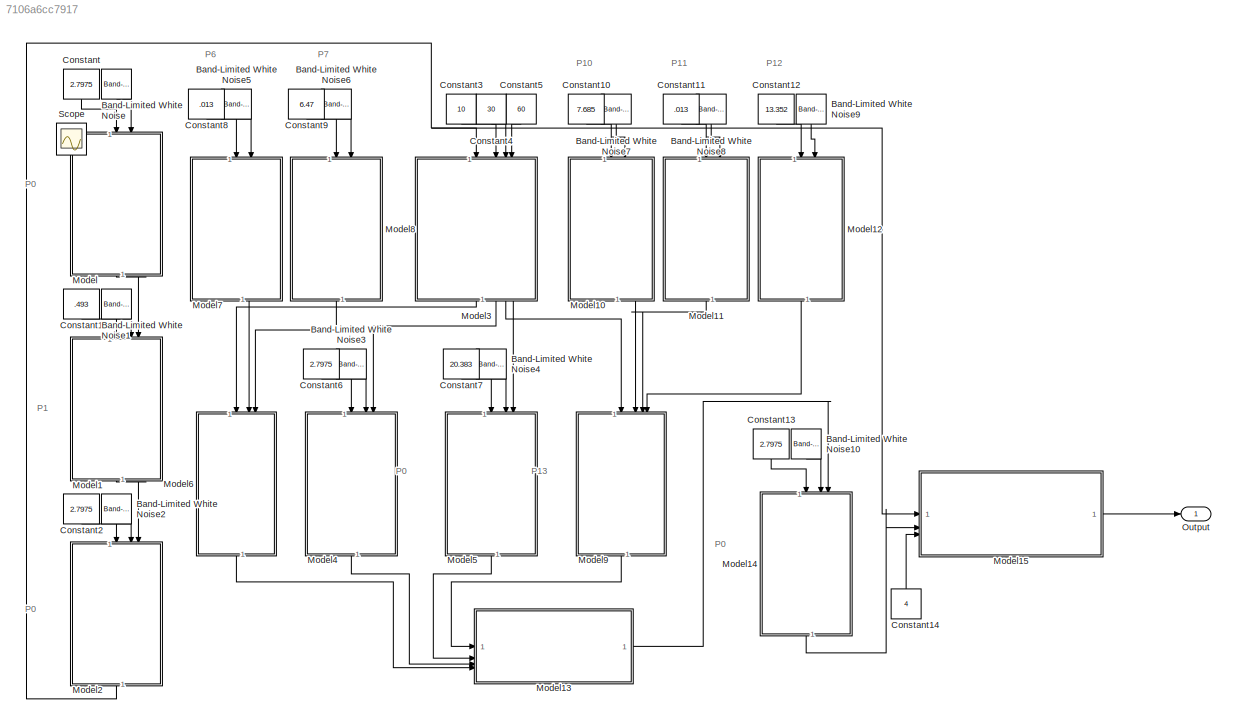
MODEL slx_7106a6cc7917
KIND model
CONFIG AbsTol = auto
CONFIG EnableMultiTasking = off
CONFIG FixedStep = auto
CONFIG MaxStep = auto
CONFIG MinStep = auto
CONFIG RelTol = 1e-3
CONFIG SampleTimeConstraint = Unconstrained
CONFIG SolverName = VariableStepAuto
CONFIG StartTime = 0.0
CONFIG StopTime = 10.0
BLOCK [Reference] Band-Limited White Noise  REF=simulink/Sources/Band-Limited
White Noise
  NameLocation = left
  SourceBlock = simulink/Sources/Band-Limited\nWhite Noise
  SourceType = Band-Limited White Noise.
BLOCK [Reference] Band-Limited White Noise1  REF=simulink/Sources/Band-Limited
White Noise
  NameLocation = left
  SourceBlock = simulink/Sources/Band-Limited\nWhite Noise
  SourceType = Band-Limited White Noise.
BLOCK [Reference] Band-Limited White Noise10  REF=simulink/Sources/Band-Limited
White Noise
  NameLocation = left
  SourceBlock = simulink/Sources/Band-Limited\nWhite Noise
  SourceType = Band-Limited White Noise.
BLOCK [Reference] Band-Limited White Noise2  REF=simulink/Sources/Band-Limited
White Noise
  NameLocation = left
  SourceBlock = simulink/Sources/Band-Limited\nWhite Noise
  SourceType = Band-Limited White Noise.
BLOCK [Reference] Band-Limited White Noise3  REF=simulink/Sources/Band-Limited
White Noise
  NameLocation = left
  SourceBlock = simulink/Sources/Band-Limited\nWhite Noise
  SourceType = Band-Limited White Noise.
BLOCK [Reference] Band-Limited White Noise4  REF=simulink/Sources/Band-Limited
White Noise
  NameLocation = left
  SourceBlock = simulink/Sources/Band-Limited\nWhite Noise
  SourceType = Band-Limited White Noise.
BLOCK [Reference] Band-Limited White Noise5  REF=simulink/Sources/Band-Limited
White Noise
  NameLocation = left
  SourceBlock = simulink/Sources/Band-Limited\nWhite Noise
  SourceType = Band-Limited White Noise.
BLOCK [Reference] Band-Limited White Noise6  REF=simulink/Sources/Band-Limited
White Noise
  NameLocation = left
  SourceBlock = simulink/Sources/Band-Limited\nWhite Noise
  SourceType = Band-Limited White Noise.
BLOCK [Reference] Band-Limited White Noise7  REF=simulink/Sources/Band-Limited
White Noise
  NameLocation = left
  SourceBlock = simulink/Sources/Band-Limited\nWhite Noise
  SourceType = Band-Limited White Noise.
BLOCK [Reference] Band-Limited White Noise8  REF=simulink/Sources/Band-Limited
White Noise
  NameLocation = left
  SourceBlock = simulink/Sources/Band-Limited\nWhite Noise
  SourceType = Band-Limited White Noise.
BLOCK [Reference] Band-Limited White Noise9  REF=simulink/Sources/Band-Limited
White Noise
  NameLocation = left
  SourceBlock = simulink/Sources/Band-Limited\nWhite Noise
  SourceType = Band-Limited White Noise.
BLOCK [Constant] Constant
  NameLocation = left
  Value = 2.7975
BLOCK [Constant] Constant1
  NameLocation = left
  Value = .493
BLOCK [Constant] Constant10
  NameLocation = left
  Value = 7.685
BLOCK [Constant] Constant11
  NameLocation = left
  Value = .013
BLOCK [Constant] Constant12
  NameLocation = left
  Value = 13.352
BLOCK [Constant] Constant13
  NameLocation = left
  Value = 2.7975
BLOCK [Constant] Constant14
  NameLocation = right
  Value = 4
BLOCK [Constant] Constant2
  NameLocation = left
  Value = 2.7975
BLOCK [Constant] Constant3
  NameLocation = left
  Value = 10
BLOCK [Constant] Constant4
  NameLocation = left
  Value = 30
BLOCK [Constant] Constant5
  NameLocation = left
  Value = 60
BLOCK [Constant] Constant6
  NameLocation = left
  Value = 2.7975
BLOCK [Constant] Constant7
  NameLocation = left
  Value = 20.383
BLOCK [Constant] Constant8
  NameLocation = left
  Value = .013
BLOCK [Constant] Constant9
  NameLocation = left
  Value = 6.47
BLOCK [ModelReference] Model
  ModelNameDialog = UpdateTimeModel.slx
  ModelReferenceVersion = 3.0
  NameLocation = left
BLOCK [ModelReference] Model1
  ModelNameDialog = UpdateTimeModel.slx
  ModelReferenceVersion = 3.0
  NameLocation = left
BLOCK [ModelReference] Model10
  ModelNameDialog = UpdateTimeModel.slx
  ModelReferenceVersion = 3.0
  NameLocation = left
BLOCK [ModelReference] Model11
  ModelNameDialog = UpdateTimeModel.slx
  ModelReferenceVersion = 3.0
  NameLocation = left
BLOCK [ModelReference] Model12
  ModelNameDialog = UpdateTimeModel.slx
  ModelReferenceVersion = 3.0
  NameLocation = left
BLOCK [ModelReference] Model13
  ModelNameDialog = Mux4.slx
  ModelReferenceVersion = 1.3
BLOCK [ModelReference] Model14
  ModelNameDialog = UpdateTimeModel.slx
  ModelReferenceVersion = 3.0
  NameLocation = left
BLOCK [ModelReference] Model15
  ModelNameDialog = LoopCounter.slx
  ModelReferenceVersion = 1.1
BLOCK [ModelReference] Model2
  ModelNameDialog = UpdateTimeModel.slx
  ModelReferenceVersion = 3.0
  NameLocation = left
BLOCK [ModelReference] Model3
  ModelNameDialog = Case4.slx
  ModelReferenceVersion = 1.6
  NameLocation = left
BLOCK [ModelReference] Model4
  ModelNameDialog = UpdateTimeModel.slx
  ModelReferenceVersion = 3.0
  NameLocation = left
BLOCK [ModelReference] Model5
  ModelNameDialog = UpdateTimeModel.slx
  ModelReferenceVersion = 3.0
  NameLocation = left
BLOCK [ModelReference] Model6
  ModelNameDialog = Pardo2.slx
  ModelReferenceVersion = 1.9
  NameLocation = left
BLOCK [ModelReference] Model7
  ModelNameDialog = UpdateTimeModel.slx
  ModelReferenceVersion = 3.0
  NameLocation = left
BLOCK [ModelReference] Model8
  ModelNameDialog = UpdateTimeModel.slx
  ModelReferenceVersion = 3.0
  NameLocation = left
BLOCK [ModelReference] Model9
  ModelNameDialog = Split3.slx
  ModelReferenceVersion = 1.6
  NameLocation = left
BLOCK [Outport] Output
BLOCK [Scope] Scope
  Floating = off
  IOType = viewer
  NumInputPorts = 1
  ScopeSpecificationString = Simulink.scopes.TimeScopeBlockCfg('CurrentConfiguration', extmgr.ConfigurationSet(extmgr.Configuration('Core','General UI',true),extmgr.Configuration('Core','Source UI',true),extmgr.Configuration('Sources','WiredSimulink',true),extmgr.Configuration('Visuals','Time Domain',true,'SerializedDisplays',{struct('MinYLimReal','-29.41176','MaxYLimReal','123.567','YLabelReal','','MinYLimMag','0.00000','Max...<+1664ch>
ANNOTATION (root): P0
ANNOTATION (root): P1
ANNOTATION (root): P10
ANNOTATION (root): P11
ANNOTATION (root): P12
ANNOTATION (root): P13
ANNOTATION (root): P6
ANNOTATION (root): P7
LINE Band-Limited White Noise10:1 -> Model14:2
LINE Band-Limited White Noise1:1 -> Model1:2
LINE Band-Limited White Noise2:1 -> Model2:2
LINE Band-Limited White Noise3:1 -> Model4:2
LINE Band-Limited White Noise4:1 -> Model5:2
LINE Band-Limited White Noise5:1 -> Model7:2
LINE Band-Limited White Noise6:1 -> Model8:2
LINE Band-Limited White Noise7:1 -> Model10:2
LINE Band-Limited White Noise8:1 -> Model11:2
LINE Band-Limited White Noise9:1 -> Model12:2
LINE Band-Limited White Noise:1 -> Model:2
LINE Constant10:1 -> Model10:1
LINE Constant11:1 -> Model11:1
LINE Constant12:1 -> Model12:1
LINE Constant13:1 -> Model14:1
LINE Constant14:1 -> Model15:3
LINE Constant1:1 -> Model1:1
LINE Constant2:1 -> Model2:1
LINE Constant3:1 -> Model3:2
LINE Constant4:1 -> Model3:3
LINE Constant5:1 -> Model3:4
LINE Constant6:1 -> Model4:1
LINE Constant7:1 -> Model5:1
LINE Constant8:1 -> Model7:1
LINE Constant9:1 -> Model8:1
LINE Constant:1 -> Model:1
LINE Model10:1 -> Model9:2
LINE Model11:1 -> Model9:3
LINE Model12:1 -> Model9:4
LINE Model13:1 -> Model14:3
LINE Model14:1 -> Model15:2
LINE Model15:1 -> Output:1
LINE Model1:1 -> Model2:3
NET Model2:1 -> Model15:1, Model3:1
LINE Model3:1 -> Model6:1
LINE Model3:2 -> Model4:3
LINE Model3:3 -> Model9:1
LINE Model3:4 -> Model5:3
LINE Model4:1 -> Model13:3
LINE Model5:1 -> Model13:2
LINE Model6:1 -> Model13:4
LINE Model7:1 -> Model6:2
LINE Model8:1 -> Model6:3
LINE Model9:1 -> Model13:1
LINE Model:1 -> Model1:3
note: NET lines group one-source signal fan-out (src -> all destinations, sorted); 1:1 wires keep LINE
